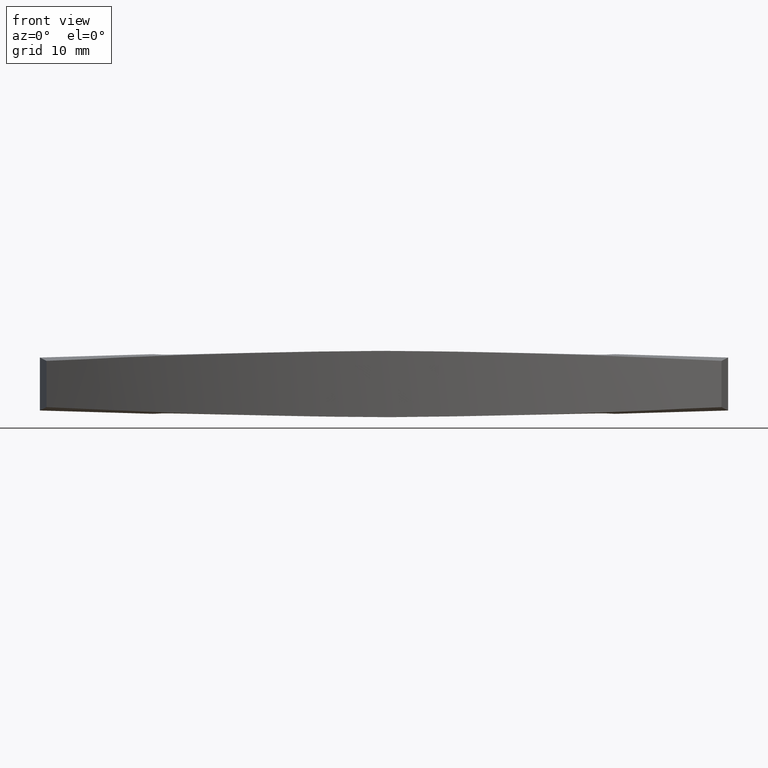
[diagram: clean part render]
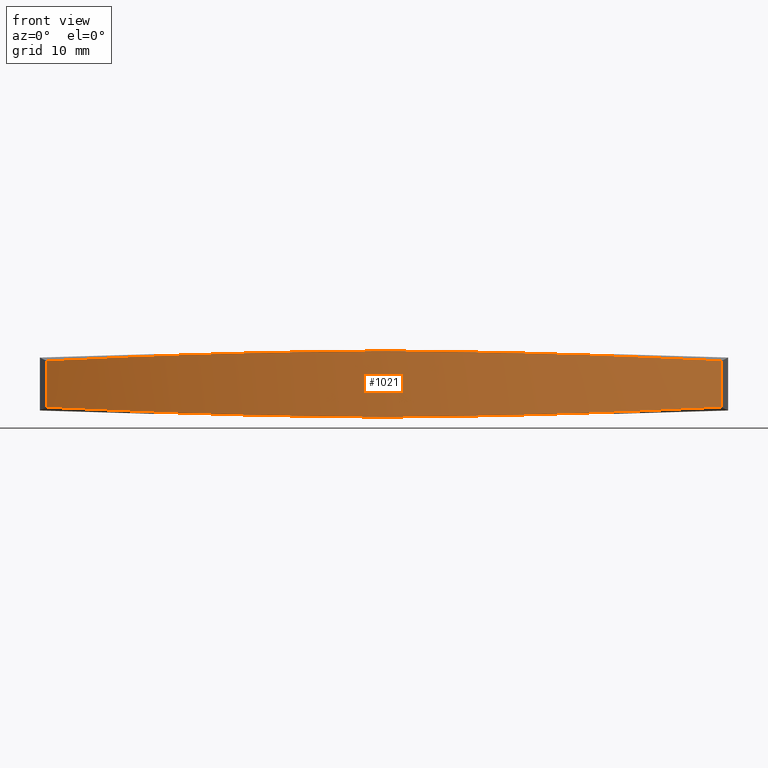
[diagram: same view with one face highlighted and labeled with its STEP entity id]
A machine part, front view. The second image highlights one B-rep face of the part: STEP entity #1021.
In plain terms, the highlighted face is a freeform B-spline surface patch.
Its self-contained STEP definition (entity closure, byte-faithful):
#849=CARTESIAN_POINT('',(-55.129200918576508,5.249999993960604,9.587318550445090));
#850=CARTESIAN_POINT('',(-55.129200918576508,-5.256249993980919,9.587318550445090));
#851=CARTESIAN_POINT('',(0.276289368106599,5.249999993960603,38.244309929374836));
#852=CARTESIAN_POINT('',(0.276289368106599,-5.256249993980919,38.244309929374836));
#853=CARTESIAN_POINT('',(55.564231124437242,5.249999993960604,9.361183278190035));
#854=CARTESIAN_POINT('',(55.564231124437242,-5.256249993980919,9.361183278190035));
#862=(BOUNDED_SURFACE()B_SPLINE_SURFACE(1,2,((#849,#851,#853),(#850,#852,#854)),.UNSPECIFIED.,.F.,.F.,.U.)B_SPLINE_SURFACE_WITH_KNOTS((2,2),(3,3),(0.0,10.506249987941519),(0.0,117.314846436595900),.UNSPECIFIED.)GEOMETRIC_REPRESENTATION_ITEM()RATIONAL_B_SPLINE_SURFACE(((1.0,0.883379569404724,0.991218633561212),(1.0,0.883379569404724,0.991218633561212)))REPRESENTATION_ITEM('')SURFACE());
#863=CARTESIAN_POINT('',(51.000556732043997,3.500028366020975,11.623340546744480));
#864=VERTEX_POINT('',#863);
#865=CARTESIAN_POINT('',(-51.000025265063101,3.500017632523155,11.623590079103939));
#866=VERTEX_POINT('',#865);
#867=CARTESIAN_POINT('',(51.000556732043997,3.500028366020975,11.623340546744480));
#868=CARTESIAN_POINT('',(49.999002726022930,3.531916449465963,12.093589387801240));
#869=CARTESIAN_POINT('',(48.993465843662143,3.569178366427639,12.548806289668089));
#870=CARTESIAN_POINT('',(46.974492879915758,3.652934378367684,13.429608249697329));
#871=CARTESIAN_POINT('',(45.961057254128853,3.699441997909214,13.855193233760520));
#872=CARTESIAN_POINT('',(43.926277058533223,3.798477331912412,14.677103705804670));
#873=CARTESIAN_POINT('',(42.904933040966462,3.851020688427025,15.073429199283540));
#874=CARTESIAN_POINT('',(40.854234036196416,3.956753661188666,15.837134774048501));
#875=CARTESIAN_POINT('',(39.824873357617982,4.009764096124000,16.204517078858089));
#876=CARTESIAN_POINT('',(37.757962069904799,4.109431895350990,16.910579360238700));
#877=CARTESIAN_POINT('',(36.720413839877892,4.156170116268301,17.249257651894521));
#878=CARTESIAN_POINT('',(34.637102472804152,4.241789660878911,17.898012680260749));
#879=CARTESIAN_POINT('',(33.591339739675782,4.280688630668315,18.208088633844529));
#880=CARTESIAN_POINT('',(31.491679830943479,4.352915881823312,18.799638889055490));
#881=CARTESIAN_POINT('',(30.437785816641899,4.386344299365500,19.081111878358410));
#882=CARTESIAN_POINT('',(28.322021211798781,4.452714076332899,19.615380127274580));
#883=CARTESIAN_POINT('',(27.260148453099450,4.485583844551221,19.868176656518070));
#884=CARTESIAN_POINT('',(25.128413401189999,4.551173081820926,20.345002578310780));
#885=CARTESIAN_POINT('',(24.058550642595179,4.583875464557368,20.569032461515079));
#886=CARTESIAN_POINT('',(21.910736677450942,4.647444661569059,20.988182486766551));
#887=CARTESIAN_POINT('',(20.832784705203281,4.678285943259620,21.183303108867630));
#888=CARTESIAN_POINT('',(18.668618978032740,4.734851863109988,21.544426299372770));
#889=CARTESIAN_POINT('',(17.582404978788539,4.760572779791754,21.710428459566391));
#890=CARTESIAN_POINT('',(15.401641027785750,4.807195644244615,22.013009732584290));
#891=CARTESIAN_POINT('',(14.307091453292490,4.828109198884669,22.149588732338330));
#892=CARTESIAN_POINT('',(12.658977065303720,4.857030791915112,22.332104965683460));
#893=CARTESIAN_POINT('',(12.108162783310890,4.866277874380287,22.389252457622909));
#894=CARTESIAN_POINT('',(11.007506080033330,4.884201144090866,22.495757679841422));
#895=CARTESIAN_POINT('',(10.457435601360650,4.892883453597388,22.545146488110269));
#896=CARTESIAN_POINT('',(8.807988132289959,4.918563493852848,22.681797193189858));
#897=CARTESIAN_POINT('',(7.709375502001534,4.935140206601808,22.757545515715460));
#898=CARTESIAN_POINT('',(4.416604816389818,4.978782345057838,22.939247304400489));
#899=CARTESIAN_POINT('',(2.225511809313357,4.999755386272868,22.999690916634780));
#900=CARTESIAN_POINT('',(-2.148375621563903,5.000240363043934,23.001096687549321));
#901=CARTESIAN_POINT('',(-4.331169221576038,4.979651874879330,22.942061397147000));
#902=CARTESIAN_POINT('',(-7.599363656990462,4.936710861738606,22.764501313341210));
#903=CARTESIAN_POINT('',(-8.687761816482308,4.920379859966935,22.690471264974612));
#904=CARTESIAN_POINT('',(-10.862586770261469,4.886609899778943,22.512719755969790));
#905=CARTESIAN_POINT('',(-11.949014786770730,4.869296781930019,22.408997975447569));
#906=CARTESIAN_POINT('',(-14.119874992412861,4.831542045238783,22.171794869050519));
#907=CARTESIAN_POINT('',(-15.204306938737910,4.811075219356352,22.038313637763949));
#908=CARTESIAN_POINT('',(-17.371149789208069,4.765350302335436,21.741458559034239));
#909=CARTESIAN_POINT('',(-18.453560568742471,4.740078709467575,21.578084844726138));
#910=CARTESIAN_POINT('',(-20.616342779029249,4.684241908919143,21.221242710653229));
#911=CARTESIAN_POINT('',(-21.696713474227220,4.653599707533013,21.027774672047840));
#912=CARTESIAN_POINT('',(-23.855426540330139,4.590007380337123,20.610464076751480));
#913=CARTESIAN_POINT('',(-24.933769402922039,4.557107226098075,20.386621489054370));
#914=CARTESIAN_POINT('',(-26.549758825610759,4.507439015716843,20.027810333352068));
#915=CARTESIAN_POINT('',(-27.088167645570461,4.490816049962085,19.904364820701499));
#916=CARTESIAN_POINT('',(-28.164473539714329,4.457465570621349,19.649738821208398));
#917=CARTESIAN_POINT('',(-28.701891684283389,4.440753470120943,19.518667853623541));
#918=CARTESIAN_POINT('',(-30.309634480285791,4.390390571124663,19.114771966315441));
#919=CARTESIAN_POINT('',(-31.376394350853928,4.356671603088663,18.831042681396340));
#920=CARTESIAN_POINT('',(-33.499654758143748,4.283995513256559,18.234895866171922));
#921=CARTESIAN_POINT('',(-34.556150467388122,4.244907955321901,17.922480116042479));
#922=CARTESIAN_POINT('',(-36.658830689308068,4.158850787373298,17.269127855942720));
#923=CARTESIAN_POINT('',(-37.705014801088758,4.111864449929127,16.928192197698909));
#924=CARTESIAN_POINT('',(-39.787159076134976,4.011644228251094,16.217854258796670));
#925=CARTESIAN_POINT('',(-40.823116469606717,3.958328160219311,15.848453876523619));
#926=CARTESIAN_POINT('',(-42.885050260478657,3.852014846890776,15.081096670595670));
#927=CARTESIAN_POINT('',(-43.911033667305333,3.799209022406623,14.683137019843731));
#928=CARTESIAN_POINT('',(-45.953203617062663,3.699772870704951,13.858488127585771));
#929=CARTESIAN_POINT('',(-46.969389412460693,3.653125293275986,13.431798809787560));
#930=CARTESIAN_POINT('',(-48.992021212346202,3.569199654447789,12.549472302757300));
#931=CARTESIAN_POINT('',(-49.998466607348611,3.531906923342089,12.093835123569660));
#932=CARTESIAN_POINT('',(-51.000025265063101,3.500017632523155,11.623590079103939));
#933=B_SPLINE_CURVE_WITH_KNOTS('',3,(#867,#868,#869,#870,#871,#872,#873,#874,#875,#876,#877,#878,#879,#880,#881,#882,#883,#884,#885,#886,#887,#888,#889,#890,#891,#892,#893,#894,#895,#896,#897,#898,#899,#900,#901,#902,#903,#904,#905,#906,#907,#908,#909,#910,#911,#912,#913,#914,#915,#916,#917,#918,#919,#920,#921,#922,#923,#924,#925,#926,#927,#928,#929,#930,#931,#932),.UNSPECIFIED.,.F.,.U.,(4,2,2,2,2,2,2,2,2,2,2,2,2,2,2,2,2,2,2,2,2,2,2,2,2,2,2,2,2,2,2,2,4),(0.0,0.031250000000000,0.062500000000000,0.093750000000000,0.125000000000000,0.156250000000000,0.187500000000000,0.218750000000000,0.250000000000000,0.281250000000000,0.312500000000000,0.343750000000000,0.375000000000000,0.390625000000000,0.406250000000000,0.437500000000000,0.500000000000000,0.562500000000000,0.593750000000000,0.625000000000000,0.656250000000000,0.687500000000000,0.718750000000000,0.750000000000000,0.765624999999999,0.781249999999999,0.812500000000000,0.843750000000000,0.875000000000000,0.906250000000000,0.937500000000000,0.968750000000000,1.0),.UNSPECIFIED.);
#934=EDGE_CURVE('',#864,#866,#933,.T.);
#935=ORIENTED_EDGE('',*,*,#934,.T.);
#936=CARTESIAN_POINT('',(-51.000025265063002,-3.500017632522965,11.623590079103939));
#937=VERTEX_POINT('',#936);
#938=CARTESIAN_POINT('',(-51.000025265063002,-3.500017632522965,11.623590079103939));
#939=CARTESIAN_POINT('',(-51.000025265063101,3.500017632523155,11.623590079103939));
#940=QUASI_UNIFORM_CURVE('',1,(#938,#939),.UNSPECIFIED.,.F.,.U.);
#941=EDGE_CURVE('',#937,#866,#940,.T.);
#942=ORIENTED_EDGE('',*,*,#941,.F.);
#943=CARTESIAN_POINT('',(51.000556732043698,-3.500028366020840,11.623340546744600));
#944=VERTEX_POINT('',#943);
#945=CARTESIAN_POINT('',(-51.000025265063002,-3.500017632522965,11.623590079103939));
#946=CARTESIAN_POINT('',(-49.998468994347363,-3.531906847340730,12.093834002842179));
#947=CARTESIAN_POINT('',(-48.992929922729367,-3.569169885253825,12.549045968244620));
#948=CARTESIAN_POINT('',(-46.973952726091191,-3.652928031694193,13.429838018927819));
#949=CARTESIAN_POINT('',(-45.960515056672037,-3.699436664682696,13.855418030116960));
#950=CARTESIAN_POINT('',(-43.925730913162212,-3.798473807203030,14.677318521584390));
#951=CARTESIAN_POINT('',(-42.904384991306301,-3.851017958381052,15.073639007371820));
#952=CARTESIAN_POINT('',(-40.853682310017653,-3.956752173593455,15.837334532970500));
#953=CARTESIAN_POINT('',(-39.824319858422953,-4.009763033775212,16.204711796539758));
#954=CARTESIAN_POINT('',(-37.757405153238643,-4.109431334629806,16.910763960477102));
#955=CARTESIAN_POINT('',(-36.719855279449327,-4.156169652778453,17.249437175672540));
#956=CARTESIAN_POINT('',(-34.636540760704037,-4.241789303365303,17.898182012726391));
#957=CARTESIAN_POINT('',(-33.590776519738803,-4.280688283866983,18.208252851437550));
#958=CARTESIAN_POINT('',(-31.491113738268169,-4.352915666141247,18.799792836754460));
#959=CARTESIAN_POINT('',(-30.437218359574469,-4.386344218453023,19.081260670930650));
#960=CARTESIAN_POINT('',(-28.321451173100439,-4.452714443704698,19.615518569686841));
#961=CARTESIAN_POINT('',(-27.259577196038350,-4.485584491801912,19.868309904205269));
#962=CARTESIAN_POINT('',(-25.127839847955109,-4.551174249129245,20.345125398544148));
#963=CARTESIAN_POINT('',(-24.057976011540489,-4.583876872027913,20.569150049015509));
#964=CARTESIAN_POINT('',(-21.910160027777959,-4.647446398761008,20.988289570993270));
#965=CARTESIAN_POINT('',(-20.832207114541479,-4.678287764680259,21.183404922576990));
#966=CARTESIAN_POINT('',(-18.668039640809120,-4.734853656501482,21.544517533356281));
#967=CARTESIAN_POINT('',(-17.581824837095201,-4.760574493895038,21.710514384129858));
#968=CARTESIAN_POINT('',(-15.401059419729670,-4.807197170888528,22.013084998051571));
#969=CARTESIAN_POINT('',(-14.306509183353270,-4.828110617510518,22.149658648132721));
#970=CARTESIAN_POINT('',(-12.658393913068601,-4.857032080984483,22.332166826335211));
#971=CARTESIAN_POINT('',(-12.107579351364270,-4.866279125483127,22.389311626648109));
#972=CARTESIAN_POINT('',(-11.006922109655820,-4.884202335837880,22.495811471809851));
#973=CARTESIAN_POINT('',(-10.456851380824521,-4.892884625385235,22.545197592668291));
#974=CARTESIAN_POINT('',(-8.807403218144899,-4.918564625071452,22.681840238842941));
#975=CARTESIAN_POINT('',(-7.708790201762859,-4.935141286445399,22.757583193160041));
#976=CARTESIAN_POINT('',(-4.416018584825930,-4.978783162793263,22.939268890772990));
#977=CARTESIAN_POINT('',(-2.224925259380145,-4.999755878098330,22.999701793680611));
#978=CARTESIAN_POINT('',(2.148962211297183,-5.000239888167583,23.001086184684318));
#979=CARTESIAN_POINT('',(4.331755535797177,-4.979651067716173,22.942040223725702));
#980=CARTESIAN_POINT('',(7.599949118893368,-4.936709786740585,22.764464162774320));
#981=CARTESIAN_POINT('',(8.688346921033858,-4.920378731492784,22.690428793474741));
#982=CARTESIAN_POINT('',(10.863171013534179,-4.886608713250617,22.512666652146471));
#983=CARTESIAN_POINT('',(11.949598525647840,-4.869295542689359,22.408939560264969));
#984=CARTESIAN_POINT('',(14.120457574412750,-4.831540639559230,22.171725841113041));
#985=CARTESIAN_POINT('',(15.204888868330491,-4.811073707586537,22.038239308427759));
#986=CARTESIAN_POINT('',(17.371730265982549,-4.765348600602949,21.741373637086610));
#987=CARTESIAN_POINT('',(18.454140245107101,-4.740076923951166,21.577994631568099));
#988=CARTESIAN_POINT('',(20.616920706533520,-4.684240078376931,21.221141925328300));
#989=CARTESIAN_POINT('',(21.697290453557748,-4.653597944308028,21.027668605720930));
#990=CARTESIAN_POINT('',(23.856001474586279,-4.590005929737940,20.610347458527439));
#991=CARTESIAN_POINT('',(24.934343240188699,-4.557106011488263,20.386499599944511));
#992=CARTESIAN_POINT('',(26.550330903671259,-4.507438192655981,20.027680545744840));
#993=CARTESIAN_POINT('',(27.088739118268190,-4.490815363319154,19.904232401569629));
#994=CARTESIAN_POINT('',(28.165043763338609,-4.457465150638811,19.649601141718481));
#995=CARTESIAN_POINT('',(28.702461278186931,-4.440753179827772,19.518527544368190));
#996=CARTESIAN_POINT('',(30.310202116512620,-4.390390629076416,19.114623793392560));
#997=CARTESIAN_POINT('',(31.376960607448481,-4.356671807480004,18.830889291447459));
#998=CARTESIAN_POINT('',(33.500218110703898,-4.283995857625827,18.234732093316559));
#999=CARTESIAN_POINT('',(34.556712296290762,-4.244908310827293,17.922311177151581));
#1000=CARTESIAN_POINT('',(36.659389336954128,-4.158851246208200,17.268948633380930));
#1001=CARTESIAN_POINT('',(37.705571791222532,-4.111865002991666,16.928007857473641));
#1002=CARTESIAN_POINT('',(39.787712625102472,-4.011645277907568,16.217659727885959));
#1003=CARTESIAN_POINT('',(40.823668235722778,-3.958329632912416,15.848254272289470));
#1004=CARTESIAN_POINT('',(42.885598334367280,-3.852017562978139,15.080886961752430));
#1005=CARTESIAN_POINT('',(43.911579830844452,-3.799212535370938,14.682922280006260));
#1006=CARTESIAN_POINT('',(45.953745823221439,-3.699778196894391,13.858263369629670));
#1007=CARTESIAN_POINT('',(46.969929571583393,-3.653131635410520,13.431569064721179));
#1008=CARTESIAN_POINT('',(48.992557134111529,-3.569208134596928,12.549232629204029));
#1009=CARTESIAN_POINT('',(49.999000338798268,-3.531916525471740,12.093590508649040));
#1010=CARTESIAN_POINT('',(51.000556732043698,-3.500028366020840,11.623340546744600));
#1011=B_SPLINE_CURVE_WITH_KNOTS('',3,(#945,#946,#947,#948,#949,#950,#951,#952,#953,#954,#955,#956,#957,#958,#959,#960,#961,#962,#963,#964,#965,#966,#967,#968,#969,#970,#971,#972,#973,#974,#975,#976,#977,#978,#979,#980,#981,#982,#983,#984,#985,#986,#987,#988,#989,#990,#991,#992,#993,#994,#995,#996,#997,#998,#999,#1000,#1001,#1002,#1003,#1004,#1005,#1006,#1007,#1008,#1009,#1010),.UNSPECIFIED.,.F.,.U.,(4,2,2,2,2,2,2,2,2,2,2,2,2,2,2,2,2,2,2,2,2,2,2,2,2,2,2,2,2,2,2,2,4),(0.0,0.031250000000000,0.062500000000000,0.093750000000000,0.125000000000001,0.156250000000001,0.187500000000001,0.218750000000001,0.250000000000001,0.281250000000001,0.312500000000001,0.343750000000001,0.375000000000002,0.390625000000002,0.406250000000002,0.437500000000002,0.500000000000002,0.562500000000002,0.593750000000002,0.625000000000002,0.656250000000002,0.687500000000002,0.718750000000002,0.750000000000002,0.765625000000002,0.781250000000002,0.812500000000002,0.843750000000002,0.875000000000001,0.906250000000001,0.937500000000001,0.968750000000000,1.0),.UNSPECIFIED.);
#1012=EDGE_CURVE('',#937,#944,#1011,.T.);
#1013=ORIENTED_EDGE('',*,*,#1012,.T.);
#1014=CARTESIAN_POINT('',(51.000556732043997,3.500028366020975,11.623340546744480));
#1015=CARTESIAN_POINT('',(51.000556732043698,-3.500028366020840,11.623340546744600));
#1016=QUASI_UNIFORM_CURVE('',1,(#1014,#1015),.UNSPECIFIED.,.F.,.U.);
#1017=EDGE_CURVE('',#864,#944,#1016,.T.);
#1018=ORIENTED_EDGE('',*,*,#1017,.F.);
#1019=EDGE_LOOP('',(#935,#942,#1013,#1018));
#1020=FACE_OUTER_BOUND('',#1019,.T.);
#1021=ADVANCED_FACE('',(#1020),#862,.T.);